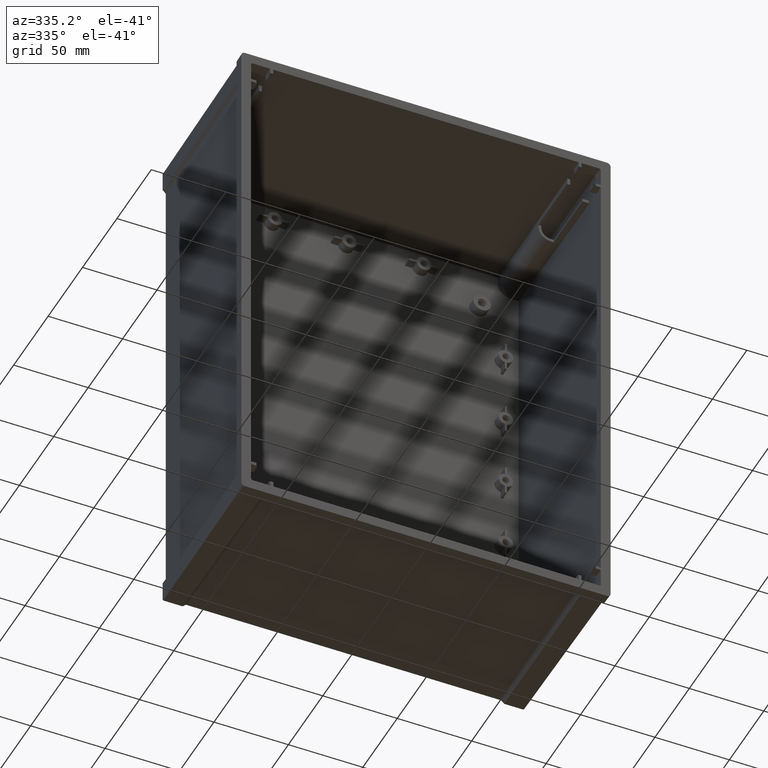
[diagram: clean part render]
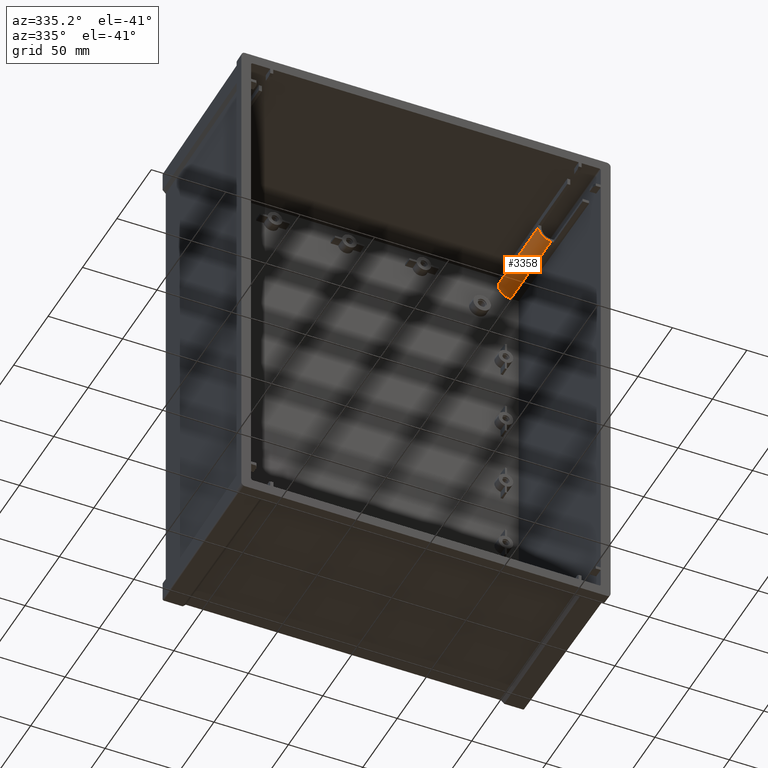
[diagram: same view with one face highlighted and labeled with its STEP entity id]
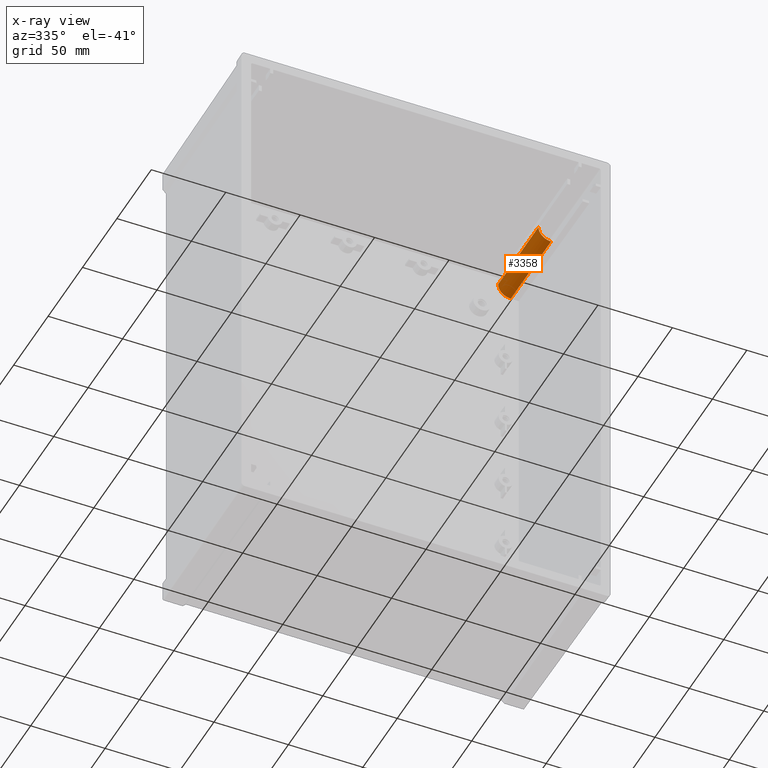
[diagram: x-ray of the same camera — body ghosted, the highlighted face saturated]
A machine part, auxiliary view. The second image highlights one B-rep face of the part: STEP entity #3358.
The next image is the same camera in x-ray: the body ghosted, the highlighted face saturated — about 0% of this face is hidden behind the body in this view.
In plain terms, the highlighted cylindrical surface (edge-blend (fillet) strip) has radius 8.5 mm, axis along (0, -1, 0).
Its self-contained STEP definition (entity closure, byte-faithful):
#950 = AXIS2_PLACEMENT_3D ( 'NONE', #10912, #10913, #10914 ) ;
#954 = CIRCLE ( 'NONE', #950, 8.499999999999992900 ) ;
#2035 = EDGE_CURVE ( 'NONE', #5390, #5391, #954, .T. ) ;
#3218 = EDGE_CURVE ( 'NONE', #6390, #5390, #10370, .T. ) ;
#3226 = EDGE_CURVE ( 'NONE', #6381, #5391, #10378, .T. ) ;
#3245 = EDGE_CURVE ( 'NONE', #6381, #6390, #14731, .T. ) ;
#3358 = ADVANCED_FACE ( 'NONE', ( #10492 ), #10493, .T. ) ;
#4124 = EDGE_LOOP ( 'NONE', ( #13334, #13335, #13336, #13333 ) ) ;
#5390 = VERTEX_POINT ( 'NONE', #17284 ) ;
#5391 = VERTEX_POINT ( 'NONE', #17285 ) ;
#6381 = VERTEX_POINT ( 'NONE', #17595 ) ;
#6390 = VERTEX_POINT ( 'NONE', #17600 ) ;
#10370 = LINE ( 'NONE', #15569, #14782 ) ;
#10378 = LINE ( 'NONE', #15585, #14794 ) ;
#10492 = FACE_OUTER_BOUND ( 'NONE', #4124, .T. ) ;
#10493 = CYLINDRICAL_SURFACE ( 'NONE', #14975, 8.499999999999992900 ) ;
#10912 = CARTESIAN_POINT ( 'NONE',  ( 111.0743235325000000, 117.0000000000000000, 162.0743235324999900 ) ) ;
#10913 = DIRECTION ( 'NONE',  ( 0.0000000000000000000, -1.000000000000000000, 0.0000000000000000000 ) ) ;
#10914 = DIRECTION ( 'NONE',  ( -1.000000000000000000, 0.0000000000000000000, 0.0000000000000000000 ) ) ;
#13333 = ORIENTED_EDGE ( 'NONE', *, *, #3226, .F. ) ;
#13334 = ORIENTED_EDGE ( 'NONE', *, *, #3245, .T. ) ;
#13335 = ORIENTED_EDGE ( 'NONE', *, *, #3218, .T. ) ;
#13336 = ORIENTED_EDGE ( 'NONE', *, *, #2035, .T. ) ;
#14731 = CIRCLE ( 'NONE', #14838, 8.500000000000007100 ) ;
#14782 = VECTOR ( 'NONE', #15570, 1000.000000000000000 ) ;
#14794 = VECTOR ( 'NONE', #15586, 1000.000000000000000 ) ;
#14838 = AXIS2_PLACEMENT_3D ( 'NONE', #15624, #15625, #15626 ) ;
#14975 = AXIS2_PLACEMENT_3D ( 'NONE', #15942, #15943, #15944 ) ;
#15569 = CARTESIAN_POINT ( 'NONE',  ( 102.5743235325000200, 58.50000000000000000, 162.0743235324999900 ) ) ;
#15570 = DIRECTION ( 'NONE',  ( 0.0000000000000000000, 1.000000000000000000, 0.0000000000000000000 ) ) ;
#15585 = CARTESIAN_POINT ( 'NONE',  ( 111.0743235325000000, 58.50000000000000000, 153.5743235324999900 ) ) ;
#15586 = DIRECTION ( 'NONE',  ( 0.0000000000000000000, 1.000000000000000000, 0.0000000000000000000 ) ) ;
#15624 = CARTESIAN_POINT ( 'NONE',  ( 111.0743235325000000, 58.50000000000000000, 162.0743235324999900 ) ) ;
#15625 = DIRECTION ( 'NONE',  ( 0.0000000000000000000, 1.000000000000000000, 0.0000000000000000000 ) ) ;
#15626 = DIRECTION ( 'NONE',  ( 0.0000000000000000000, 0.0000000000000000000, -1.000000000000000000 ) ) ;
#15942 = CARTESIAN_POINT ( 'NONE',  ( 111.0743235325000000, -163.7876385269000000, 162.0743235324999900 ) ) ;
#15943 = DIRECTION ( 'NONE',  ( 0.0000000000000000000, -1.000000000000000000, 0.0000000000000000000 ) ) ;
#15944 = DIRECTION ( 'NONE',  ( -1.000000000000000000, 0.0000000000000000000, 0.0000000000000000000 ) ) ;
#17284 = CARTESIAN_POINT ( 'NONE',  ( 102.5743235325000200, 117.0000000000000000, 162.0743235324999900 ) ) ;
#17285 = CARTESIAN_POINT ( 'NONE',  ( 111.0743235325000000, 117.0000000000000000, 153.5743235324999900 ) ) ;
#17595 = CARTESIAN_POINT ( 'NONE',  ( 111.0743235325000000, 58.50000000000000000, 153.5743235324999900 ) ) ;
#17600 = CARTESIAN_POINT ( 'NONE',  ( 102.5743235325000200, 58.50000000000000000, 162.0743235324999900 ) ) ;